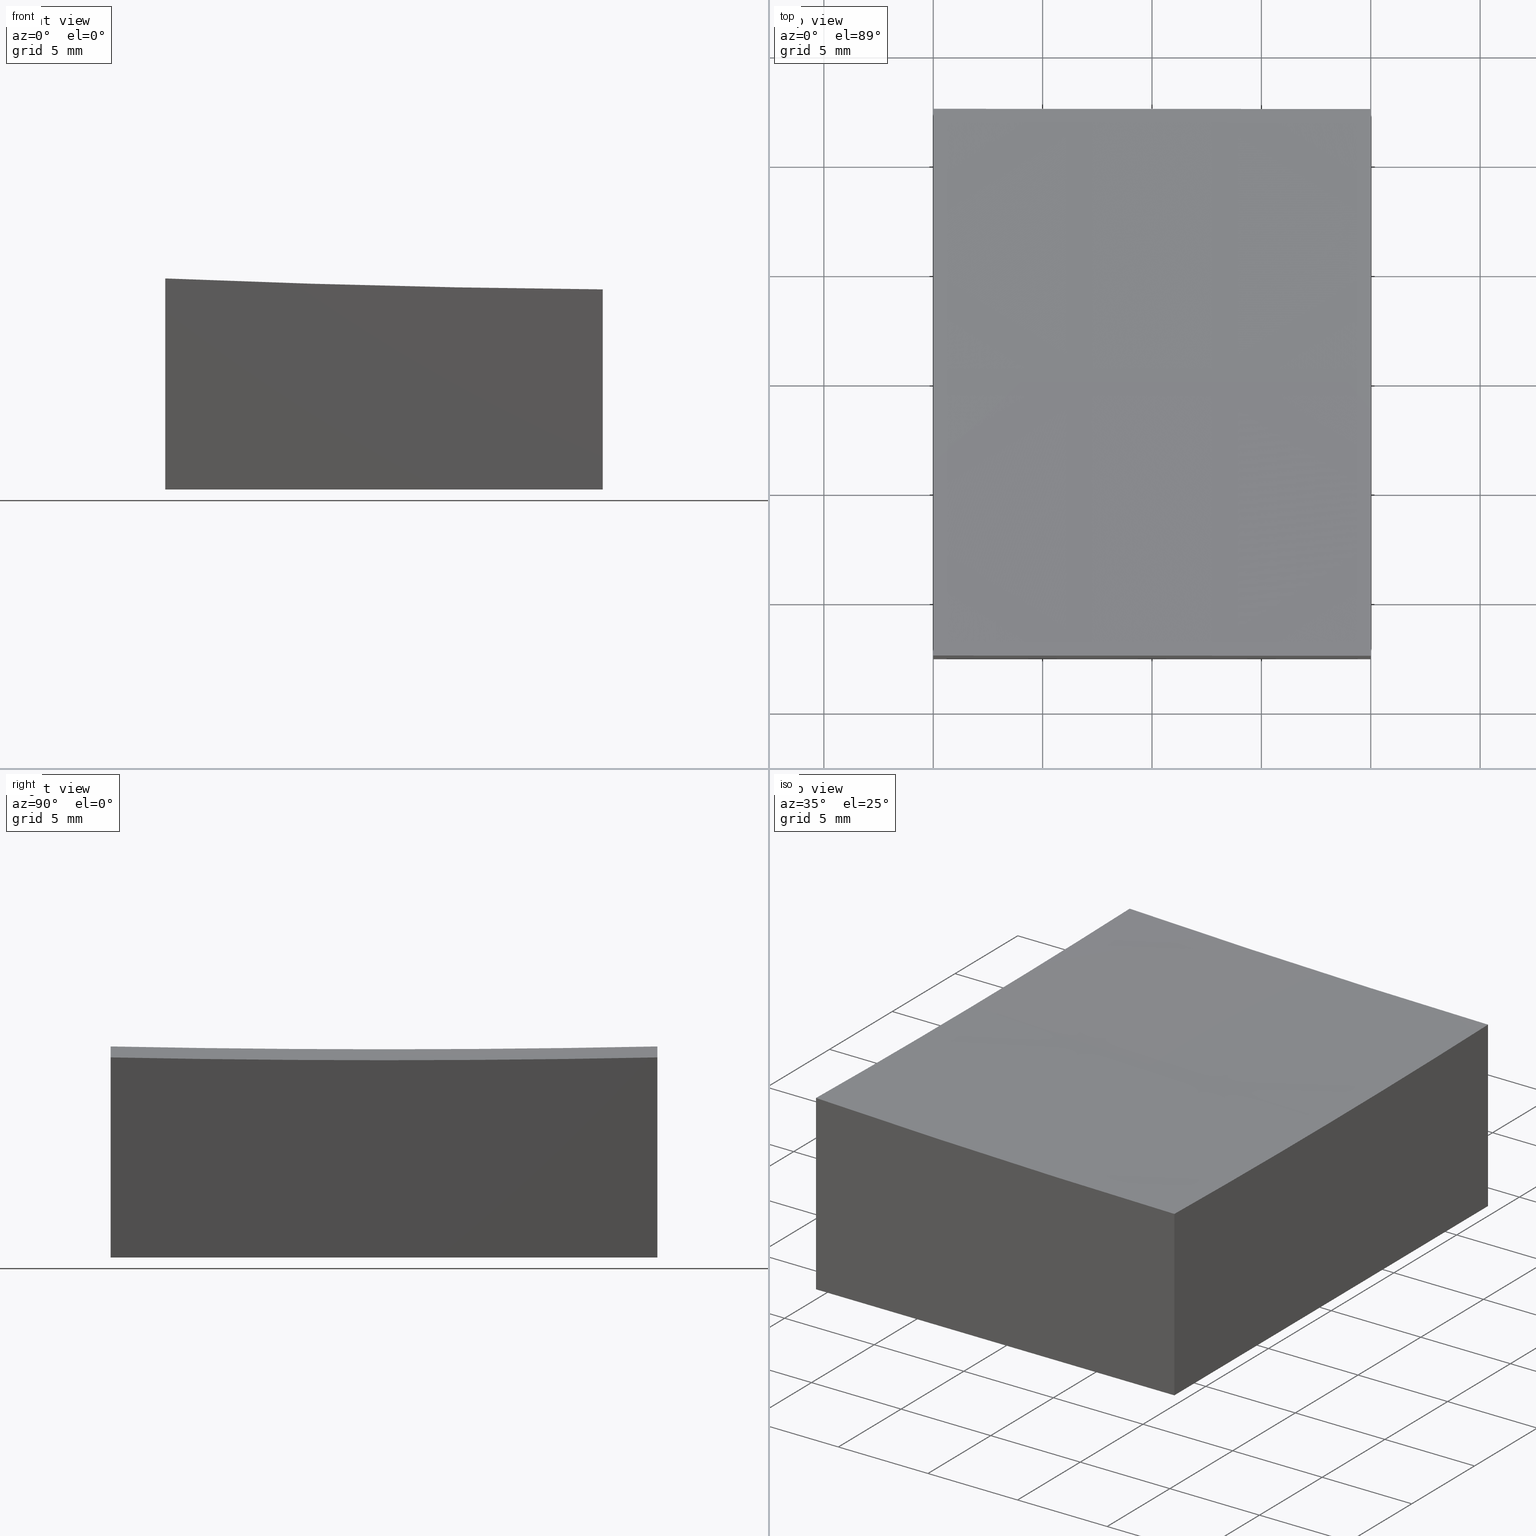
[diagram: canonical four-view strip — front | top / right | iso, engineering-drawing reading convention]
A machine part, canonical four-view strip (front | top / right | iso — engineering-drawing reading convention). The complete STEP part file that produces these views, byte-faithful:
ISO-10303-21;
HEADER;
FILE_DESCRIPTION (( 'STEP AP203' ),
    '1' );
FILE_NAME ('270641.step',
    '2024-12-24T02:21:47',
    ( '' ),
    ( '' ),
    'SwSTEP 2.0',
    'SolidWorks 2020',
    '' );
FILE_SCHEMA (( 'CONFIG_CONTROL_DESIGN' ));
ENDSEC;

DATA;
#1 = ORIENTED_EDGE ( 'NONE', *, *, #122, .F. ) ;
#2 = DIRECTION ( 'NONE',  ( -1.000000000000000000, 0.000000000000000000, 0.000000000000000000 ) ) ;
#3 = CIRCLE ( 'NONE', #17, 599.9999999999998863 ) ;
#4 = CC_DESIGN_APPROVAL ( #30, ( #111 ) ) ;
#5 = DATE_TIME_ROLE ( 'creation_date' ) ;
#6 = PERSON_AND_ORGANIZATION_ROLE ( 'creator' ) ;
#7 = CARTESIAN_POINT ( 'NONE',  ( 10.00000000000000178, 0.000000000000000000, 599.0000000000000000 ) ) ;
#8 = CC_DESIGN_PERSON_AND_ORGANIZATION_ASSIGNMENT ( #50, #89, ( #52 ) ) ;
#9 = PLANE ( 'NONE',  #57 ) ;
#10 = DIRECTION ( 'NONE',  ( 0.000000000000000000, 1.000000000000000000, -0.000000000000000000 ) ) ;
#11 = PLANE ( 'NONE',  #192 ) ;
#12 = AXIS2_PLACEMENT_3D ( 'NONE', #250, #31, #139 ) ;
#13 = MANIFOLD_SOLID_BREP ( '�г�-��ת8', #32 ) ;
#14 = DIRECTION ( 'NONE',  ( -0.000000000000000000, -0.000000000000000000, -1.000000000000000000 ) ) ;
#15 = ORIENTED_EDGE ( 'NONE', *, *, #266, .T. ) ;
#16 = ORIENTED_EDGE ( 'NONE', *, *, #68, .T. ) ;
#17 = AXIS2_PLACEMENT_3D ( 'NONE', #123, #210, #232 ) ;
#18 = ORIENTED_EDGE ( 'NONE', *, *, #19, .F. ) ;
#19 = EDGE_CURVE ( 'NONE', #195, #60, #38, .T. ) ;
#20 = PLANE ( 'NONE',  #55 ) ;
#21 = UNCERTAINTY_MEASURE_WITH_UNIT (LENGTH_MEASURE( 1.000000000000000082E-05 ), #211, 'distance_accuracy_value', 'NONE');
#22 = DATE_AND_TIME ( #201, #203 ) ;
#23 = CARTESIAN_POINT ( 'NONE',  ( -9.999999999999996447, 12.49999999999999645, -0.3486047368425060355 ) ) ;
#24 = EDGE_LOOP ( 'NONE', ( #274, #257, #242, #130 ) ) ;
#25 = CC_DESIGN_PERSON_AND_ORGANIZATION_ASSIGNMENT ( #222, #244, ( #52 ) ) ;
#26 = EDGE_CURVE ( 'NONE', #178, #127, #197, .T. ) ;
#27 = CARTESIAN_POINT ( 'NONE',  ( -9.999999999999998224, 0.000000000000000000, 599.0000000000000000 ) ) ;
#28 = AXIS2_PLACEMENT_3D ( 'NONE', #247, #190, #183 ) ;
#29 = PERSON_AND_ORGANIZATION ( #43, #41 ) ;
#30 = APPROVAL ( #161, 'δָ��' ) ;
#31 = DIRECTION ( 'NONE',  ( 0.000000000000000000, 1.000000000000000000, -0.000000000000000000 ) ) ;
#32 = CLOSED_SHELL ( 'NONE', ( #153, #132, #208, #36, #70, #56, #174 ) ) ;
#33 = LOCAL_TIME ( 10, 21, 47.00000000000000000, #188 ) ;
#34 = LINE ( 'NONE', #58, #88 ) ;
#35 = DIRECTION ( 'NONE',  ( -1.734723475976807094E-16, 1.000000000000000000, 0.000000000000000000 ) ) ;
#36 = ADVANCED_FACE ( 'NONE', ( #131 ), #20, .F. ) ;
#37 = CARTESIAN_POINT ( 'NONE',  ( 10.00000000000000178, -12.50000000000000000, -10.00000000000000000 ) ) ;
#38 = LINE ( 'NONE', #125, #179 ) ;
#39 = APPROVAL_ROLE ( '' ) ;
#40 = ORIENTED_EDGE ( 'NONE', *, *, #86, .T. ) ;
#41 = ORGANIZATION ( 'δָ��', 'δָ��', '' ) ;
#42 = ORIENTED_EDGE ( 'NONE', *, *, #220, .T. ) ;
#43 = PERSON ( 'δָ��', 'δָ��', 'δָ��', ('δָ��'), ('δָ��'), ('δָ��') ) ;
#44 = PERSON_AND_ORGANIZATION ( #43, #41 ) ;
#45 = AXIS2_PLACEMENT_3D ( 'NONE', #151, #254, #236 ) ;
#46 = DIRECTION ( 'NONE',  ( 0.000000000000000000, 0.000000000000000000, 1.000000000000000000 ) ) ;
#47 = CARTESIAN_POINT ( 'NONE',  ( 10.00000000000000178, -12.50000000000000000, 10.00000000000000000 ) ) ;
#48 = APPROVAL_DATE_TIME ( #114, #30 ) ;
#49 = DIRECTION ( 'NONE',  ( -0.000000000000000000, -0.000000000000000000, -1.000000000000000000 ) ) ;
#50 = PERSON_AND_ORGANIZATION ( #43, #41 ) ;
#51 = CARTESIAN_POINT ( 'NONE',  ( -9.999999999999998224, 0.000000000000000000, 599.0000000000000000 ) ) ;
#52 = PRODUCT_DEFINITION_FORMATION_WITH_SPECIFIED_SOURCE ( '�κ�', '', #225, .NOT_KNOWN. ) ;
#53 = APPROVAL ( #239, 'δָ��' ) ;
#54 = FACE_OUTER_BOUND ( 'NONE', #176, .T. ) ;
#55 = AXIS2_PLACEMENT_3D ( 'NONE', #47, #2, #95 ) ;
#56 = ADVANCED_FACE ( 'NONE', ( #267 ), #9, .F. ) ;
#57 = AXIS2_PLACEMENT_3D ( 'NONE', #187, #97, #189 ) ;
#58 = CARTESIAN_POINT ( 'NONE',  ( -9.999999999999998224, -12.50000000000000355, 10.00000000000000000 ) ) ;
#59 = PLANE ( 'NONE',  #45 ) ;
#60 = VERTEX_POINT ( 'NONE', #269 ) ;
#61 = PERSON_AND_ORGANIZATION ( #43, #41 ) ;
#62 = EDGE_LOOP ( 'NONE', ( #108, #180, #156, #40 ) ) ;
#63 = ORIENTED_EDGE ( 'NONE', *, *, #185, .T. ) ;
#64 = EDGE_LOOP ( 'NONE', ( #173, #238, #243, #149 ) ) ;
#65 = PRODUCT_DEFINITION ( 'δ֪', '', #52, #119 ) ;
#66 = PERSON_AND_ORGANIZATION ( #43, #41 ) ;
#67 = VECTOR ( 'NONE', #155, 1000.000000000000000 ) ;
#68 = EDGE_CURVE ( 'NONE', #212, #240, #223, .T. ) ;
#69 = DIRECTION ( 'NONE',  ( -1.000000000000000000, 0.000000000000000000, 1.850371707708594563E-16 ) ) ;
#70 = ADVANCED_FACE ( 'NONE', ( #76 ), #11, .F. ) ;
#71 = APPROVAL_STATUS ( 'not_yet_approved' ) ;
#72 = CARTESIAN_POINT ( 'NONE',  ( -9.999999999999998224, 12.49999999999999645, -10.00000000000000000 ) ) ;
#73 = COORDINATED_UNIVERSAL_TIME_OFFSET ( 8, 0, .AHEAD. ) ;
#74 = DIRECTION ( 'NONE',  ( -1.000000000000000000, 0.000000000000000000, 0.000000000000000000 ) ) ;
#75 = AXIS2_PLACEMENT_3D ( 'NONE', #249, #10, #69 ) ;
#76 = FACE_OUTER_BOUND ( 'NONE', #62, .T. ) ;
#77 = CARTESIAN_POINT ( 'NONE',  ( 10.00000000000000178, 0.000000000000000000, 599.0000000000000000 ) ) ;
#78 = APPROVAL_PERSON_ORGANIZATION ( #44, #184, #226 ) ;
#79 = FACE_OUTER_BOUND ( 'NONE', #87, .T. ) ;
#80 = CARTESIAN_POINT ( 'NONE',  ( -10.00000000000000000, -12.50000000000000355, -0.3486047368425060355 ) ) ;
#81 = MECHANICAL_CONTEXT ( 'NONE', #177, 'mechanical' ) ;
#82 = ORIENTED_EDGE ( 'NONE', *, *, #204, .T. ) ;
#83 = PERSON_AND_ORGANIZATION_ROLE ( 'design_owner' ) ;
#84 = VERTEX_POINT ( 'NONE', #23 ) ;
#85 = ORIENTED_EDGE ( 'NONE', *, *, #26, .T. ) ;
#86 = EDGE_CURVE ( 'NONE', #60, #178, #166, .T. ) ;
#87 = EDGE_LOOP ( 'NONE', ( #116, #42, #217, #82 ) ) ;
#88 = VECTOR ( 'NONE', #14, 1000.000000000000000 ) ;
#89 = PERSON_AND_ORGANIZATION_ROLE ( 'creator' ) ;
#90 = EDGE_CURVE ( 'NONE', #195, #255, #92, .T. ) ;
#91 = PERSON_AND_ORGANIZATION_ROLE ( 'classification_officer' ) ;
#92 = CIRCLE ( 'NONE', #251, 599.9791663049641102 ) ;
#93 = DIRECTION ( 'NONE',  ( 0.000000000000000000, 1.000000000000000000, 0.000000000000000000 ) ) ;
#94 = COORDINATED_UNIVERSAL_TIME_OFFSET ( 8, 0, .AHEAD. ) ;
#95 = DIRECTION ( 'NONE',  ( 0.000000000000000000, 0.000000000000000000, 1.000000000000000000 ) ) ;
#96 = CALENDAR_DATE ( 2024, 24, 12 ) ;
#97 = DIRECTION ( 'NONE',  ( 0.000000000000000000, -0.000000000000000000, 1.000000000000000000 ) ) ;
#98 = CIRCLE ( 'NONE', #154, 599.9791663049641102 ) ;
#99 = CARTESIAN_POINT ( 'NONE',  ( 10.00000000000000178, 12.50000000000000000, -10.00000000000000000 ) ) ;
#100 = EDGE_CURVE ( 'NONE', #255, #212, #98, .T. ) ;
#101 = AXIS2_PLACEMENT_3D ( 'NONE', #102, #35, #170 ) ;
#102 = CARTESIAN_POINT ( 'NONE',  ( 15.00000000000007816, -12.49999999999999822, 599.0000000000000000 ) ) ;
#103 = ADVANCED_BREP_SHAPE_REPRESENTATION ( '270641', ( #13, #165 ), #168 ) ;
#104 = ORIENTED_EDGE ( 'NONE', *, *, #271, .T. ) ;
#105 = VECTOR ( 'NONE', #148, 1000.000000000000000 ) ;
#106 = DIRECTION ( 'NONE',  ( 1.000000000000000000, 0.000000000000000000, 0.000000000000000000 ) ) ;
#107 = DIRECTION ( 'NONE',  ( -0.000000000000000000, -0.000000000000000000, -1.000000000000000000 ) ) ;
#108 = ORIENTED_EDGE ( 'NONE', *, *, #266, .F. ) ;
#109 = EDGE_LOOP ( 'NONE', ( #260, #104, #224, #1 ) ) ;
#110 = VERTEX_POINT ( 'NONE', #252 ) ;
#111 = SECURITY_CLASSIFICATION ( '', '', #228 ) ;
#112 = COORDINATED_UNIVERSAL_TIME_OFFSET ( 8, 0, .AHEAD. ) ;
#113 = COORDINATED_UNIVERSAL_TIME_OFFSET ( 8, 0, .AHEAD. ) ;
#114 = DATE_AND_TIME ( #182, #199 ) ;
#115 = SPHERICAL_SURFACE ( 'NONE', #12, 599.9999999999998863 ) ;
#116 = ORIENTED_EDGE ( 'NONE', *, *, #68, .F. ) ;
#117 = DIRECTION ( 'NONE',  ( 0.000000000000000000, 0.000000000000000000, 1.000000000000000000 ) ) ;
#118 = DIRECTION ( 'NONE',  ( 1.000000000000000000, 1.734723475976807094E-16, 0.000000000000000000 ) ) ;
#119 = DESIGN_CONTEXT ( 'detailed design', #135, 'design' ) ;
#120 = SPHERICAL_SURFACE ( 'NONE', #75, 599.9999999999998863 ) ;
#121 = CC_DESIGN_APPROVAL ( #53, ( #65 ) ) ;
#122 = EDGE_CURVE ( 'NONE', #84, #195, #147, .T. ) ;
#123 = CARTESIAN_POINT ( 'NONE',  ( 15.00000000000007638, 0.000000000000000000, 599.0000000000000000 ) ) ;
#124 = DIRECTION ( 'NONE',  ( -0.000000000000000000, -0.000000000000000000, -1.000000000000000000 ) ) ;
#125 = CARTESIAN_POINT ( 'NONE',  ( 10.00000000000000178, 12.50000000000000000, 10.00000000000000000 ) ) ;
#126 = LINE ( 'NONE', #216, #145 ) ;
#127 = VERTEX_POINT ( 'NONE', #205 ) ;
#128 = CC_DESIGN_PERSON_AND_ORGANIZATION_ASSIGNMENT ( #264, #91, ( #111 ) ) ;
#129 = CARTESIAN_POINT ( 'NONE',  ( 10.00000000000000178, -12.50000000000000000, -0.8489393172249615205 ) ) ;
#130 = ORIENTED_EDGE ( 'NONE', *, *, #204, .F. ) ;
#131 = FACE_OUTER_BOUND ( 'NONE', #198, .T. ) ;
#132 = ADVANCED_FACE ( 'NONE', ( #54 ), #162, .F. ) ;
#133 = PRODUCT_RELATED_PRODUCT_CATEGORY ( 'detail', '', ( #225 ) ) ;
#134 = CALENDAR_DATE ( 2024, 24, 12 ) ;
#135 = APPLICATION_CONTEXT ( 'configuration controlled 3d designs of mechanical parts and assemblies' ) ;
#136 = APPROVAL_DATE_TIME ( #186, #53 ) ;
#137 = DIRECTION ( 'NONE',  ( 1.000000000000000000, 0.000000000000000000, 0.000000000000000000 ) ) ;
#138 = ORIENTED_EDGE ( 'NONE', *, *, #196, .T. ) ;
#139 = DIRECTION ( 'NONE',  ( -1.000000000000000000, 0.000000000000000000, 1.850371707708594563E-16 ) ) ;
#140 = CC_DESIGN_DATE_AND_TIME_ASSIGNMENT ( #22, #5, ( #65 ) ) ;
#141 = DATE_AND_TIME ( #159, #33 ) ;
#142 = CC_DESIGN_SECURITY_CLASSIFICATION ( #111, ( #52 ) ) ;
#143 = DIRECTION ( 'NONE',  ( 1.734723475976807094E-16, -1.000000000000000000, 0.000000000000000000 ) ) ;
#144 = DIRECTION ( 'NONE',  ( 1.000000000000000000, 0.000000000000000000, 0.000000000000000000 ) ) ;
#145 = VECTOR ( 'NONE', #124, 1000.000000000000000 ) ;
#146 = DIRECTION ( 'NONE',  ( 1.000000000000000000, 0.000000000000000000, 0.000000000000000000 ) ) ;
#147 = CIRCLE ( 'NONE', #28, 599.8697775350912025 ) ;
#148 = DIRECTION ( 'NONE',  ( 1.000000000000000000, 1.734723475976807094E-16, -0.000000000000000000 ) ) ;
#149 = ORIENTED_EDGE ( 'NONE', *, *, #100, .F. ) ;
#150 = CC_DESIGN_DATE_AND_TIME_ASSIGNMENT ( #181, #200, ( #111 ) ) ;
#151 = CARTESIAN_POINT ( 'NONE',  ( 10.00000000000000178, -12.50000000000000000, 10.00000000000000000 ) ) ;
#152 = ORIENTED_EDGE ( 'NONE', *, *, #221, .F. ) ;
#153 = ADVANCED_FACE ( 'NONE', ( #230 ), #115, .F. ) ;
#154 = AXIS2_PLACEMENT_3D ( 'NONE', #77, #167, #117 ) ;
#155 = DIRECTION ( 'NONE',  ( -0.000000000000000000, -1.000000000000000000, -0.000000000000000000 ) ) ;
#156 = ORIENTED_EDGE ( 'NONE', *, *, #19, .T. ) ;
#157 = CIRCLE ( 'NONE', #101, 599.8697775350912025 ) ;
#158 = CARTESIAN_POINT ( 'NONE',  ( 10.00000000000000178, 12.50000000000000000, -0.8489393172249615205 ) ) ;
#159 = CALENDAR_DATE ( 2024, 24, 12 ) ;
#160 = DIRECTION ( 'NONE',  ( 0.000000000000000000, 0.000000000000000000, -1.000000000000000000 ) ) ;
#161 = APPROVAL_STATUS ( 'not_yet_approved' ) ;
#162 = PLANE ( 'NONE',  #262 ) ;
#163 = EDGE_CURVE ( 'NONE', #277, #110, #215, .T. ) ;
#164 = LOCAL_TIME ( 10, 21, 47.00000000000000000, #112 ) ;
#165 = AXIS2_PLACEMENT_3D ( 'NONE', #172, #253, #106 ) ;
#166 = LINE ( 'NONE', #99, #219 ) ;
#167 = DIRECTION ( 'NONE',  ( -1.000000000000000000, 0.000000000000000000, 0.000000000000000000 ) ) ;
#168 =( GEOMETRIC_REPRESENTATION_CONTEXT ( 3 ) GLOBAL_UNCERTAINTY_ASSIGNED_CONTEXT ( ( #21 ) ) GLOBAL_UNIT_ASSIGNED_CONTEXT ( ( #211, #213, #194 ) ) REPRESENTATION_CONTEXT ( 'NONE', 'WORKASPACE' ) );
#169 = CARTESIAN_POINT ( 'NONE',  ( 10.00000000000000178, -12.50000000000000000, -10.00000000000000000 ) ) ;
#170 = DIRECTION ( 'NONE',  ( -1.000000000000000000, -1.735100057654092364E-16, 0.000000000000000000 ) ) ;
#171 = CIRCLE ( 'NONE', #275, 599.4789404140898341 ) ;
#172 = CARTESIAN_POINT ( 'NONE',  ( 0.000000000000000000, 0.000000000000000000, 0.000000000000000000 ) ) ;
#173 = ORIENTED_EDGE ( 'NONE', *, *, #271, .F. ) ;
#174 = ADVANCED_FACE ( 'NONE', ( #227 ), #120, .F. ) ;
#175 = ORIENTED_EDGE ( 'NONE', *, *, #90, .T. ) ;
#176 = EDGE_LOOP ( 'NONE', ( #152, #214, #138, #15, #85 ) ) ;
#177 = APPLICATION_CONTEXT ( 'configuration controlled 3d designs of mechanical parts and assemblies' ) ;
#178 = VERTEX_POINT ( 'NONE', #72 ) ;
#179 = VECTOR ( 'NONE', #107, 1000.000000000000000 ) ;
#180 = ORIENTED_EDGE ( 'NONE', *, *, #122, .T. ) ;
#181 = DATE_AND_TIME ( #134, #241 ) ;
#182 = CALENDAR_DATE ( 2024, 24, 12 ) ;
#183 = DIRECTION ( 'NONE',  ( 1.000000000000000000, 1.735100057654092364E-16, 0.000000000000000000 ) ) ;
#184 = APPROVAL ( #71, 'δָ��' ) ;
#185 = EDGE_CURVE ( 'NONE', #240, #60, #207, .T. ) ;
#186 = DATE_AND_TIME ( #96, #164 ) ;
#187 = CARTESIAN_POINT ( 'NONE',  ( 0.000000000000000000, 0.000000000000000000, -10.00000000000000000 ) ) ;
#188 = COORDINATED_UNIVERSAL_TIME_OFFSET ( 8, 0, .AHEAD. ) ;
#189 = DIRECTION ( 'NONE',  ( 1.000000000000000000, 0.000000000000000000, -0.000000000000000000 ) ) ;
#190 = DIRECTION ( 'NONE',  ( 1.734723475976807094E-16, -1.000000000000000000, 0.000000000000000000 ) ) ;
#191 = DIRECTION ( 'NONE',  ( -1.000000000000000000, -1.734723475976807094E-16, 0.000000000000000000 ) ) ;
#192 = AXIS2_PLACEMENT_3D ( 'NONE', #263, #143, #118 ) ;
#193 = CC_DESIGN_PERSON_AND_ORGANIZATION_ASSIGNMENT ( #66, #6, ( #65 ) ) ;
#194 =( NAMED_UNIT ( * ) SI_UNIT ( $, .STERADIAN. ) SOLID_ANGLE_UNIT ( ) );
#195 = VERTEX_POINT ( 'NONE', #158 ) ;
#196 = EDGE_CURVE ( 'NONE', #110, #84, #171, .T. ) ;
#197 = LINE ( 'NONE', #218, #67 ) ;
#198 = EDGE_LOOP ( 'NONE', ( #18, #175, #258, #16, #63 ) ) ;
#199 = LOCAL_TIME ( 10, 21, 47.00000000000000000, #94 ) ;
#200 = DATE_TIME_ROLE ( 'classification_date' ) ;
#201 = CALENDAR_DATE ( 2024, 24, 12 ) ;
#202 = CARTESIAN_POINT ( 'NONE',  ( -9.999999999999998224, -12.50000000000000355, 10.00000000000000000 ) ) ;
#203 = LOCAL_TIME ( 10, 21, 47.00000000000000000, #113 ) ;
#204 = EDGE_CURVE ( 'NONE', #127, #240, #272, .T. ) ;
#205 = CARTESIAN_POINT ( 'NONE',  ( -9.999999999999998224, -12.50000000000000355, -10.00000000000000000 ) ) ;
#206 = CARTESIAN_POINT ( 'NONE',  ( 10.00000000000000178, -12.50000000000000000, -10.00000000000000000 ) ) ;
#207 = LINE ( 'NONE', #206, #231 ) ;
#208 = ADVANCED_FACE ( 'NONE', ( #79 ), #59, .F. ) ;
#209 = CC_DESIGN_APPROVAL ( #184, ( #52 ) ) ;
#210 = DIRECTION ( 'NONE',  ( 0.000000000000000000, -1.000000000000000000, 0.000000000000000000 ) ) ;
#211 =( LENGTH_UNIT ( ) NAMED_UNIT ( * ) SI_UNIT ( .MILLI., .METRE. ) );
#212 = VERTEX_POINT ( 'NONE', #129 ) ;
#213 =( NAMED_UNIT ( * ) PLANE_ANGLE_UNIT ( ) SI_UNIT ( $, .RADIAN. ) );
#214 = ORIENTED_EDGE ( 'NONE', *, *, #163, .T. ) ;
#215 = CIRCLE ( 'NONE', #235, 599.4789404140898341 ) ;
#216 = CARTESIAN_POINT ( 'NONE',  ( -9.999999999999998224, 12.49999999999999645, 10.00000000000000000 ) ) ;
#217 = ORIENTED_EDGE ( 'NONE', *, *, #221, .T. ) ;
#218 = CARTESIAN_POINT ( 'NONE',  ( -9.999999999999998224, -12.50000000000000355, -10.00000000000000000 ) ) ;
#219 = VECTOR ( 'NONE', #191, 1000.000000000000000 ) ;
#220 = EDGE_CURVE ( 'NONE', #212, #277, #157, .T. ) ;
#221 = EDGE_CURVE ( 'NONE', #277, #127, #34, .T. ) ;
#222 = PERSON_AND_ORGANIZATION ( #43, #41 ) ;
#223 = LINE ( 'NONE', #265, #259 ) ;
#224 = ORIENTED_EDGE ( 'NONE', *, *, #90, .F. ) ;
#225 = PRODUCT ( '270641', '270641', '', ( #81 ) ) ;
#226 = APPROVAL_ROLE ( '' ) ;
#227 = FACE_OUTER_BOUND ( 'NONE', #64, .T. ) ;
#228 = SECURITY_CLASSIFICATION_LEVEL ( 'unclassified' ) ;
#229 = DIRECTION ( 'NONE',  ( 0.000000000000000000, 0.000000000000000000, -1.000000000000000000 ) ) ;
#230 = FACE_OUTER_BOUND ( 'NONE', #109, .T. ) ;
#231 = VECTOR ( 'NONE', #93, 1000.000000000000000 ) ;
#232 = DIRECTION ( 'NONE',  ( 0.000000000000000000, 0.000000000000000000, -1.000000000000000000 ) ) ;
#233 = PRODUCT_DEFINITION_SHAPE ( 'NONE', 'NONE',  #65 ) ;
#234 = DIRECTION ( 'NONE',  ( 0.000000000000000000, 0.000000000000000000, -1.000000000000000000 ) ) ;
#235 = AXIS2_PLACEMENT_3D ( 'NONE', #51, #137, #229 ) ;
#236 = DIRECTION ( 'NONE',  ( -1.000000000000000000, -1.734723475976807094E-16, 0.000000000000000000 ) ) ;
#237 = CARTESIAN_POINT ( 'NONE',  ( 10.00000000000000178, 0.000000000000000000, -0.9791663049642518324 ) ) ;
#238 = ORIENTED_EDGE ( 'NONE', *, *, #163, .F. ) ;
#239 = APPROVAL_STATUS ( 'not_yet_approved' ) ;
#240 = VERTEX_POINT ( 'NONE', #169 ) ;
#241 = LOCAL_TIME ( 10, 21, 47.00000000000000000, #73 ) ;
#242 = ORIENTED_EDGE ( 'NONE', *, *, #185, .F. ) ;
#243 = ORIENTED_EDGE ( 'NONE', *, *, #220, .F. ) ;
#244 = PERSON_AND_ORGANIZATION_ROLE ( 'design_supplier' ) ;
#245 = APPROVAL_PERSON_ORGANIZATION ( #61, #53, #39 ) ;
#246 = APPROVAL_DATE_TIME ( #141, #184 ) ;
#247 = CARTESIAN_POINT ( 'NONE',  ( 15.00000000000007461, 12.50000000000000178, 599.0000000000000000 ) ) ;
#248 = APPROVAL_ROLE ( '' ) ;
#249 = CARTESIAN_POINT ( 'NONE',  ( 15.00000000000007638, 0.000000000000000000, 599.0000000000000000 ) ) ;
#250 = CARTESIAN_POINT ( 'NONE',  ( 15.00000000000007638, 0.000000000000000000, 599.0000000000000000 ) ) ;
#251 = AXIS2_PLACEMENT_3D ( 'NONE', #7, #74, #46 ) ;
#252 = CARTESIAN_POINT ( 'NONE',  ( -10.00000000000000000, 0.000000000000000000, -0.4789404140898012585 ) ) ;
#253 = DIRECTION ( 'NONE',  ( 0.000000000000000000, 0.000000000000000000, 1.000000000000000000 ) ) ;
#254 = DIRECTION ( 'NONE',  ( -1.734723475976807094E-16, 1.000000000000000000, 0.000000000000000000 ) ) ;
#255 = VERTEX_POINT ( 'NONE', #237 ) ;
#256 = APPLICATION_PROTOCOL_DEFINITION ( 'international standard', 'config_control_design', 1994, #135 ) ;
#257 = ORIENTED_EDGE ( 'NONE', *, *, #86, .F. ) ;
#258 = ORIENTED_EDGE ( 'NONE', *, *, #100, .T. ) ;
#259 = VECTOR ( 'NONE', #49, 1000.000000000000000 ) ;
#260 = ORIENTED_EDGE ( 'NONE', *, *, #196, .F. ) ;
#261 = SHAPE_DEFINITION_REPRESENTATION ( #233, #103 ) ;
#262 = AXIS2_PLACEMENT_3D ( 'NONE', #202, #144, #160 ) ;
#263 = CARTESIAN_POINT ( 'NONE',  ( 10.00000000000000178, 12.50000000000000000, 10.00000000000000000 ) ) ;
#264 = PERSON_AND_ORGANIZATION ( #43, #41 ) ;
#265 = CARTESIAN_POINT ( 'NONE',  ( 10.00000000000000178, -12.50000000000000000, 10.00000000000000000 ) ) ;
#266 = EDGE_CURVE ( 'NONE', #84, #178, #126, .T. ) ;
#267 = FACE_OUTER_BOUND ( 'NONE', #24, .T. ) ;
#268 = APPROVAL_PERSON_ORGANIZATION ( #29, #30, #248 ) ;
#269 = CARTESIAN_POINT ( 'NONE',  ( 10.00000000000000178, 12.50000000000000000, -10.00000000000000000 ) ) ;
#270 = CC_DESIGN_PERSON_AND_ORGANIZATION_ASSIGNMENT ( #276, #83, ( #225 ) ) ;
#271 = EDGE_CURVE ( 'NONE', #110, #255, #3, .T. ) ;
#272 = LINE ( 'NONE', #37, #105 ) ;
#273 = APPLICATION_PROTOCOL_DEFINITION ( 'international standard', 'config_control_design', 1994, #177 ) ;
#274 = ORIENTED_EDGE ( 'NONE', *, *, #26, .F. ) ;
#275 = AXIS2_PLACEMENT_3D ( 'NONE', #27, #146, #234 ) ;
#276 = PERSON_AND_ORGANIZATION ( #43, #41 ) ;
#277 = VERTEX_POINT ( 'NONE', #80 ) ;
ENDSEC;
END-ISO-10303-21;
